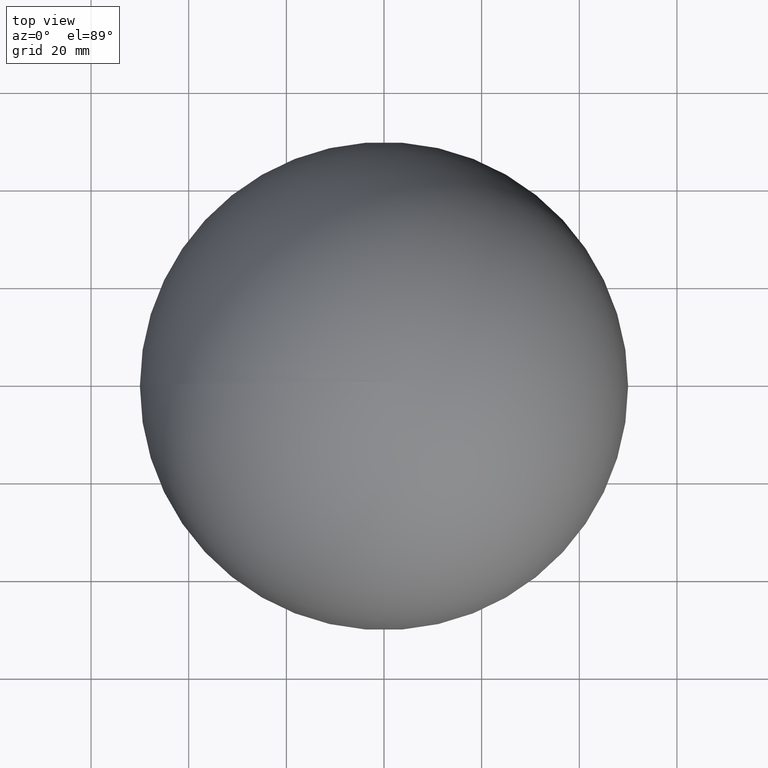
[diagram: clean part render]
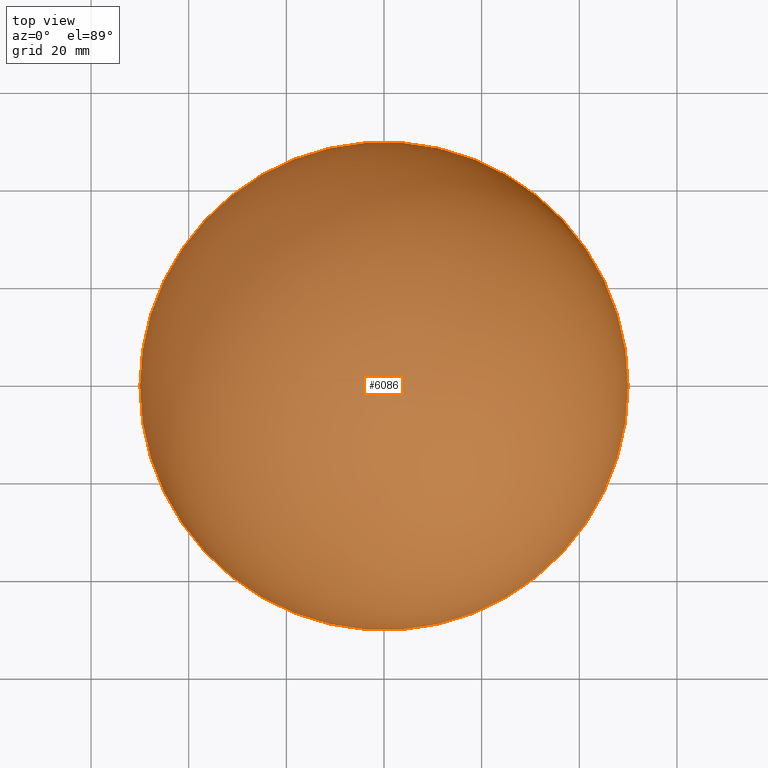
[diagram: same view with one face highlighted and labeled with its STEP entity id]
A machine part, top view. The second image highlights one B-rep face of the part: STEP entity #6086.
In plain terms, the highlighted spherical surface has radius 50 mm.
Its self-contained STEP definition (entity closure, byte-faithful):
#508 = DIRECTION ( 'NONE',  ( 6.982962677686266711E-15, 0.000000000000000000, -1.000000000000000000 ) ) ;
#541 = DIRECTION ( 'NONE',  ( -1.000000000000000000, 0.000000000000000000, -6.982962677686266711E-15 ) ) ;
#551 = EDGE_CURVE ( 'NONE', #1021, #959, #6558, .T. ) ;
#959 = VERTEX_POINT ( 'NONE', #3052 ) ;
#1021 = VERTEX_POINT ( 'NONE', #6197 ) ;
#2135 = EDGE_LOOP ( 'NONE', ( #9434, #9481 ) ) ;
#2520 = CARTESIAN_POINT ( 'NONE',  ( 0.000000000000000000, 0.000000000000000000, 0.000000000000000000 ) ) ;
#2524 = DIRECTION ( 'NONE',  ( 6.982962677686266711E-15, 0.000000000000000000, -1.000000000000000000 ) ) ;
#3016 = CARTESIAN_POINT ( 'NONE',  ( 0.000000000000000000, 0.000000000000000000, 0.000000000000000000 ) ) ;
#3052 = CARTESIAN_POINT ( 'NONE',  ( -50.00000000000000000, 0.000000000000000000, -3.491481338843133355E-13 ) ) ;
#3462 = SPHERICAL_SURFACE ( 'NONE', #5930, 50.00000000000000000 ) ;
#3722 = FACE_OUTER_BOUND ( 'NONE', #2135, .T. ) ;
#4788 = DIRECTION ( 'NONE',  ( -1.000000000000000000, 0.000000000000000000, -6.982962677686266711E-15 ) ) ;
#5930 = AXIS2_PLACEMENT_3D ( 'NONE', #2520, #8186, #8148 ) ;
#6086 = ADVANCED_FACE ( 'NONE', ( #3722 ), #3462, .T. ) ;
#6197 = CARTESIAN_POINT ( 'NONE',  ( 50.00000000000000000, 6.123233995736766085E-15, 3.491481338843133355E-13 ) ) ;
#6558 = CIRCLE ( 'NONE', #6764, 50.00000000000000000 ) ;
#6564 = EDGE_CURVE ( 'NONE', #959, #1021, #10052, .T. ) ;
#6764 = AXIS2_PLACEMENT_3D ( 'NONE', #8819, #2524, #4788 ) ;
#7699 = AXIS2_PLACEMENT_3D ( 'NONE', #3016, #508, #541 ) ;
#8148 = DIRECTION ( 'NONE',  ( -1.000000000000000000, 0.000000000000000000, -6.982962677686266711E-15 ) ) ;
#8186 = DIRECTION ( 'NONE',  ( -6.982962677686266711E-15, 0.000000000000000000, 1.000000000000000000 ) ) ;
#8819 = CARTESIAN_POINT ( 'NONE',  ( 0.000000000000000000, 0.000000000000000000, 0.000000000000000000 ) ) ;
#9434 = ORIENTED_EDGE ( 'NONE', *, *, #6564, .F. ) ;
#9481 = ORIENTED_EDGE ( 'NONE', *, *, #551, .F. ) ;
#10052 = CIRCLE ( 'NONE', #7699, 50.00000000000000000 ) ;